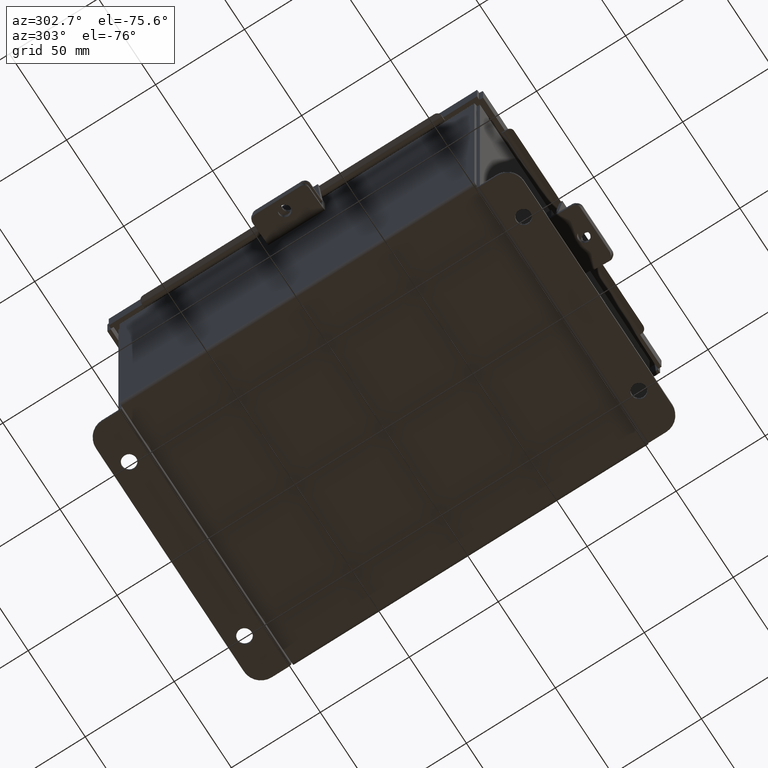
[diagram: clean part render]
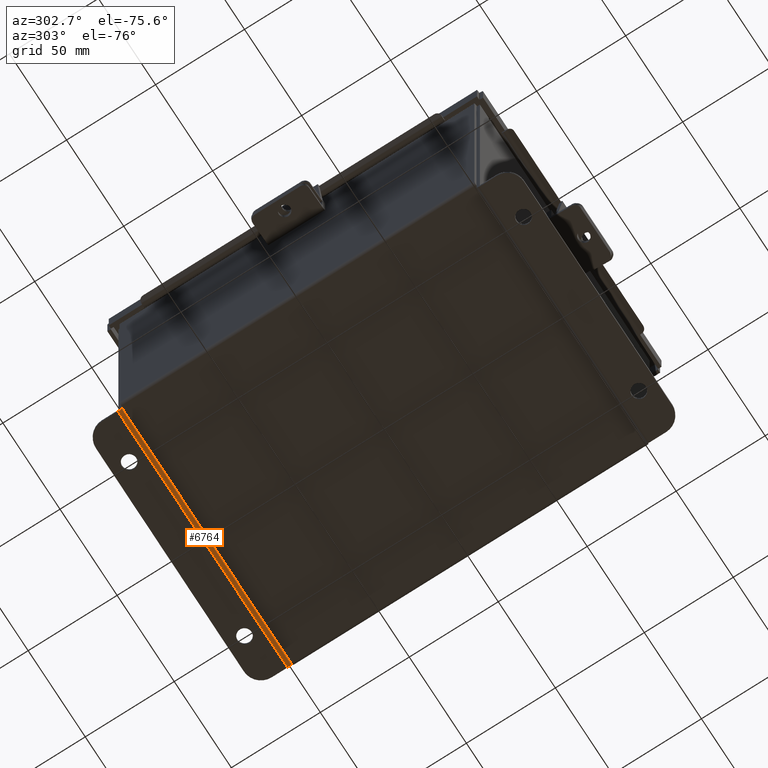
[diagram: same view with one face highlighted and labeled with its STEP entity id]
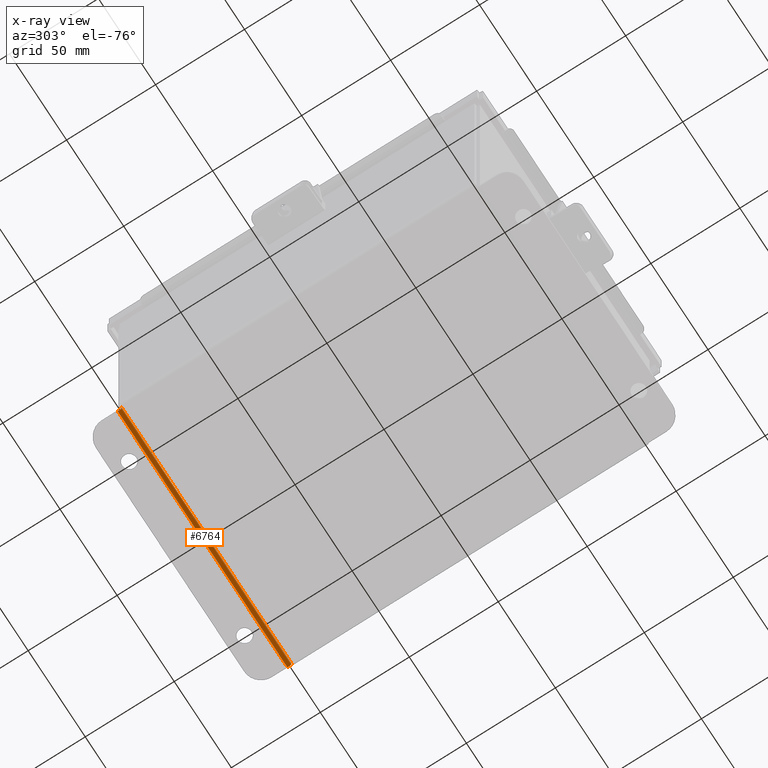
[diagram: x-ray of the same camera — body ghosted, the highlighted face saturated]
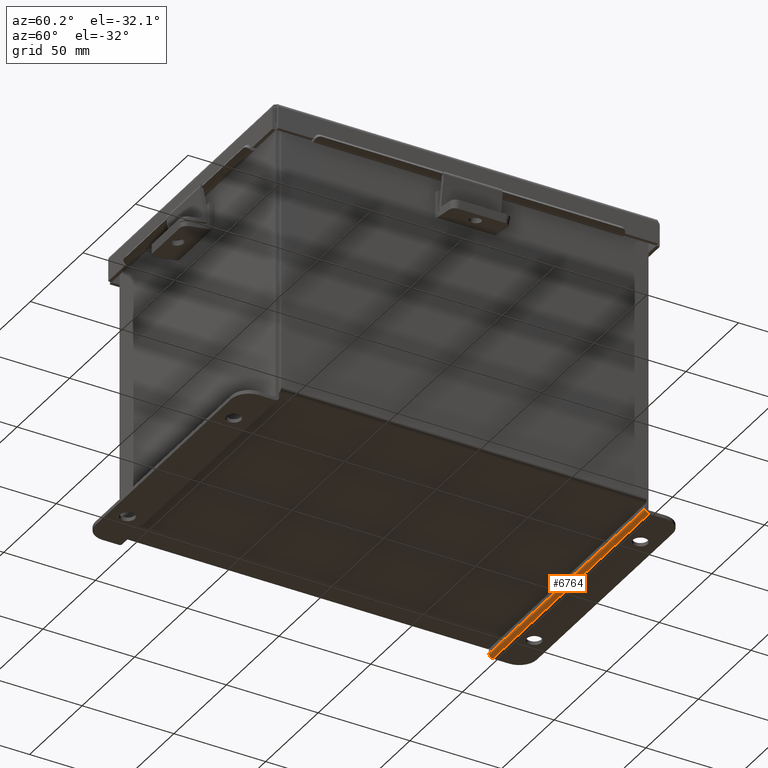
[diagram: same view with one face highlighted and labeled with its STEP entity id]
A machine part, auxiliary view. The second image highlights one B-rep face of the part: STEP entity #6764.
The next image is the same camera in x-ray: the body ghosted, the highlighted face saturated — about 0% of this face is hidden behind the body in this view.
A second angle (auxiliary view) of the same face is appended — the face is thin or edge-on in the first view.
In plain terms, the highlighted cylindrical surface (edge-blend (fillet) strip) has radius 2.2276 mm, axis along (-1, 0, 0).
Its self-contained STEP definition (entity closure, byte-faithful):
#1194 = VERTEX_POINT ( 'NONE', #7120 ) ;
#1204 = DIRECTION ( 'NONE',  ( 1.000000000000000000, -0.0000000000000000000, -0.0000000000000000000 ) ) ;
#1398 = DIRECTION ( 'NONE',  ( 1.000000000000000000, -0.0000000000000000000, -0.0000000000000000000 ) ) ;
#1402 = ORIENTED_EDGE ( 'NONE', *, *, #7763, .F. ) ;
#1590 = AXIS2_PLACEMENT_3D ( 'NONE', #3523, #4269, #9428 ) ;
#1809 = CARTESIAN_POINT ( 'NONE',  ( -2.925299999999999100, 0.01300000000000062700, -3.187000000000000300 ) ) ;
#2157 = VERTEX_POINT ( 'NONE', #2957 ) ;
#2238 = CIRCLE ( 'NONE', #7163, 0.08770000000000026400 ) ;
#2362 = EDGE_CURVE ( 'NONE', #2157, #1194, #7842, .T. ) ;
#2514 = CARTESIAN_POINT ( 'NONE',  ( -2.925299999999999100, -0.07470000000000008600, -3.099299999999999900 ) ) ;
#2957 = CARTESIAN_POINT ( 'NONE',  ( 2.925300000000000500, -0.07470000000000008600, -3.099299999999999900 ) ) ;
#3263 = DIRECTION ( 'NONE',  ( 1.000000000000000000, -0.0000000000000000000, -0.0000000000000000000 ) ) ;
#3428 = VERTEX_POINT ( 'NONE', #2514 ) ;
#3523 = CARTESIAN_POINT ( 'NONE',  ( -2.925299999999999600, 0.01300000000000001500, -3.099299999999999900 ) ) ;
#3704 = DIRECTION ( 'NONE',  ( -1.000000000000000000, 0.0000000000000000000, 0.0000000000000000000 ) ) ;
#3750 = VERTEX_POINT ( 'NONE', #1809 ) ;
#3821 = ORIENTED_EDGE ( 'NONE', *, *, #5461, .F. ) ;
#3889 = LINE ( 'NONE', #7095, #7285 ) ;
#4269 = DIRECTION ( 'NONE',  ( -1.000000000000000000, 0.0000000000000000000, 0.0000000000000000000 ) ) ;
#4817 = ORIENTED_EDGE ( 'NONE', *, *, #2362, .F. ) ;
#4940 = AXIS2_PLACEMENT_3D ( 'NONE', #7627, #3263, #8391 ) ;
#5461 = EDGE_CURVE ( 'NONE', #3428, #2157, #6300, .T. ) ;
#5879 = FACE_OUTER_BOUND ( 'NONE', #9425, .T. ) ;
#6300 = LINE ( 'NONE', #7287, #9131 ) ;
#6764 = ADVANCED_FACE ( 'NONE', ( #5879 ), #8880, .T. ) ;
#7095 = CARTESIAN_POINT ( 'NONE',  ( 2.925300000000000500, 0.01300000000000062700, -3.187000000000000300 ) ) ;
#7120 = CARTESIAN_POINT ( 'NONE',  ( 2.925300000000000500, 0.01299999999999968500, -3.187000000000000300 ) ) ;
#7163 = AXIS2_PLACEMENT_3D ( 'NONE', #8076, #3704, #8839 ) ;
#7285 = VECTOR ( 'NONE', #1204, 39.37007874015748100 ) ;
#7287 = CARTESIAN_POINT ( 'NONE',  ( -2.925299999999999600, -0.07470000000000008600, -3.099299999999999900 ) ) ;
#7579 = EDGE_CURVE ( 'NONE', #3750, #1194, #3889, .T. ) ;
#7627 = CARTESIAN_POINT ( 'NONE',  ( 2.925300000000000500, 0.01300000000000001500, -3.099299999999999900 ) ) ;
#7763 = EDGE_CURVE ( 'NONE', #3750, #3428, #2238, .T. ) ;
#7842 = CIRCLE ( 'NONE', #4940, 0.08770000000000026400 ) ;
#8076 = CARTESIAN_POINT ( 'NONE',  ( -2.925299999999999100, 0.01300000000000001500, -3.099299999999999900 ) ) ;
#8391 = DIRECTION ( 'NONE',  ( 0.0000000000000000000, 0.0000000000000000000, 1.000000000000000000 ) ) ;
#8602 = ORIENTED_EDGE ( 'NONE', *, *, #7579, .T. ) ;
#8839 = DIRECTION ( 'NONE',  ( 0.0000000000000000000, 0.0000000000000000000, 1.000000000000000000 ) ) ;
#8880 = CYLINDRICAL_SURFACE ( 'NONE', #1590, 0.08770000000000026400 ) ;
#9131 = VECTOR ( 'NONE', #1398, 39.37007874015748100 ) ;
#9425 = EDGE_LOOP ( 'NONE', ( #3821, #1402, #8602, #4817 ) ) ;
#9428 = DIRECTION ( 'NONE',  ( 0.0000000000000000000, -3.699053013085864000E-015, -1.000000000000000000 ) ) ;